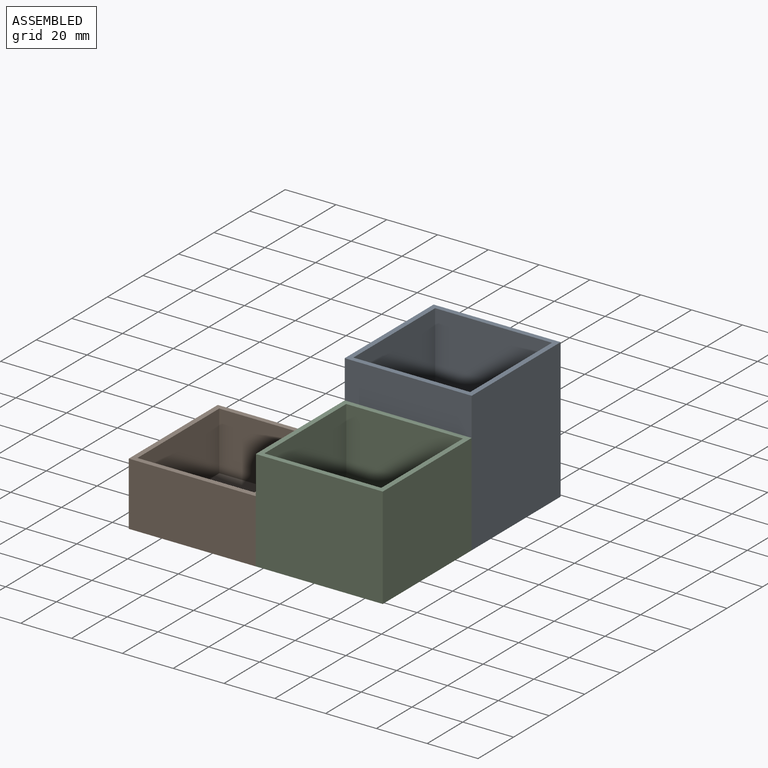
[diagram: assembled view]
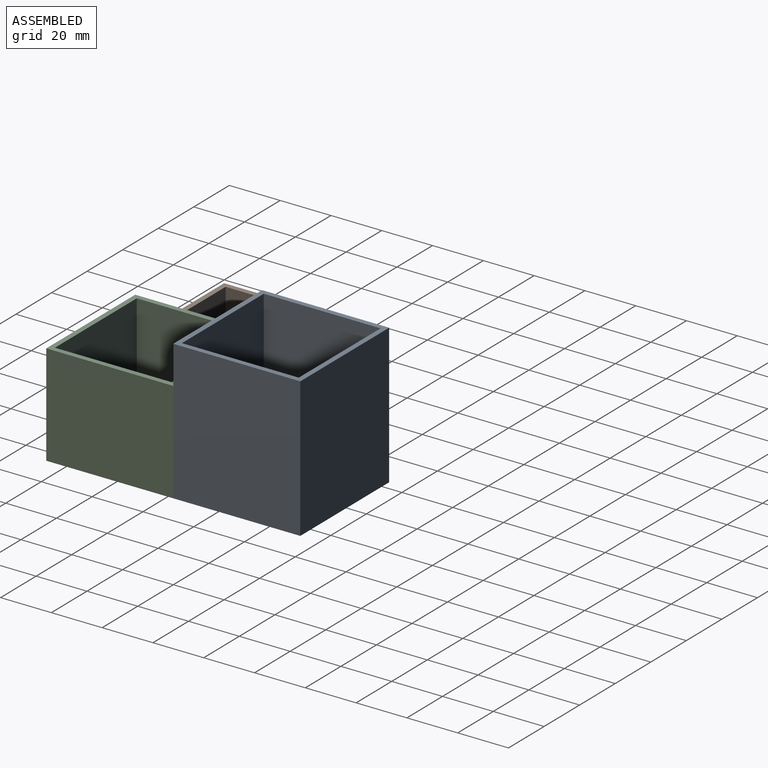
[diagram: assembled view, second angle]
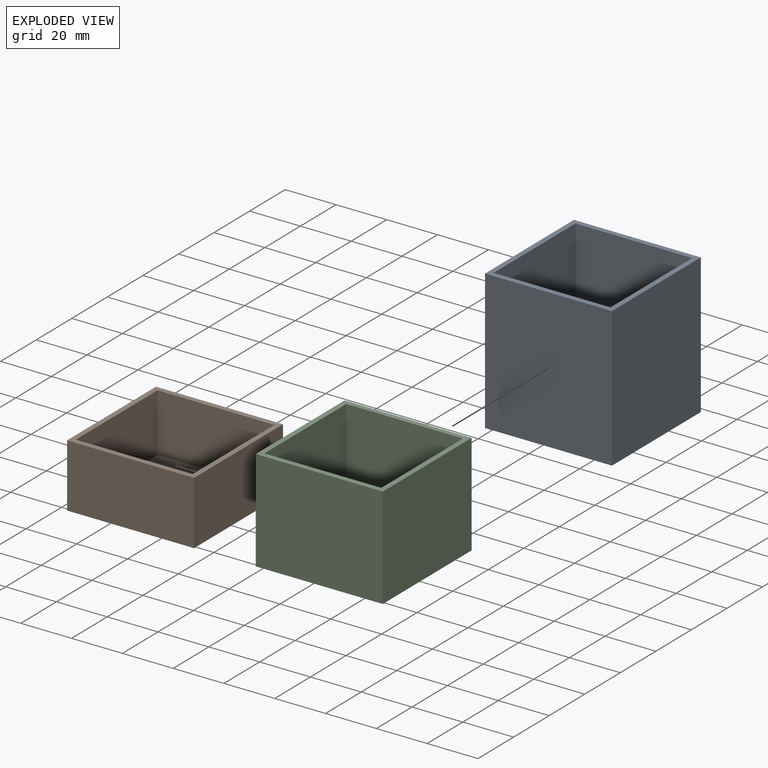
[diagram: exploded view]
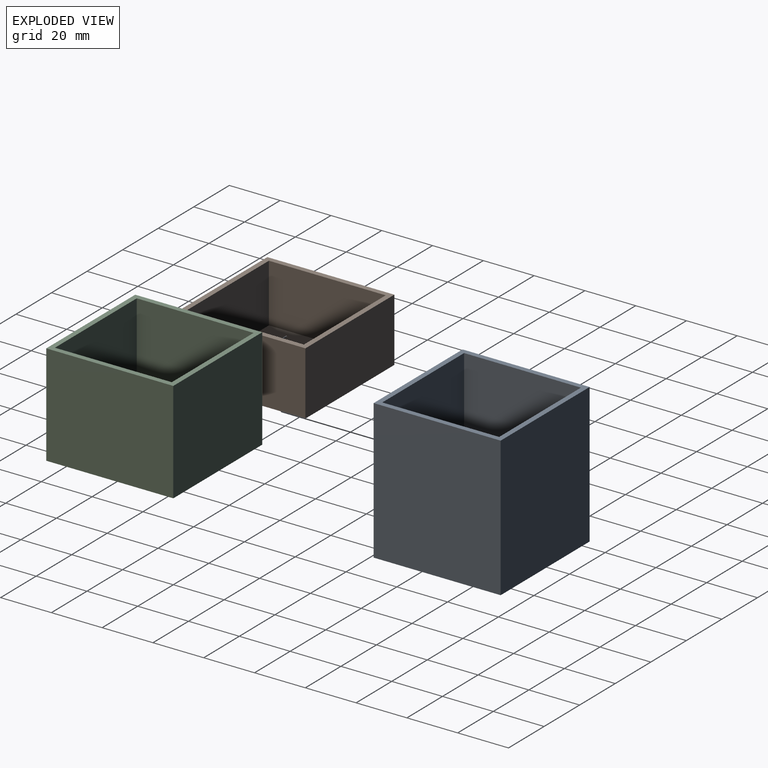
[diagram: exploded view, second angle]
ASSEMBLY  parts=3 mates=2
PART A: 11 faces, bbox 50x50x55 mm
  f0: plane 53x46mm, normal (0,1,0), area 2438mm2, adj f1,f3,f4,f5
  f1: plane 53x46mm, normal (1,0,0), area 2438mm2, adj f0,f2,f4,f5
  f2: plane 53x46mm, normal (0,-1,0), area 2438mm2, adj f1,f3,f4,f5
  f3: plane 53x46mm, normal (-1,0,0), area 2438mm2, adj f0,f2,f4,f5
  f4: plane 46x46mm, normal (0,0,1), area 2116mm2, adj f0,f1,f2,f3
  f5: plane 50x50mm, normal (0,0,1), area 384mm2, adj f0,f1,f2,f3,f7,f8,f9,f10
  f6: plane 50x50mm, normal (0,0,-1), area 2500mm2, adj f7,f8,f9,f10
  f7: plane 55x50mm, normal (-1,0,0), area 2750mm2, adj f5,f6,f8,f10
  f8: plane 55x50mm, normal (0,1,0), area 2750mm2, adj f5,f6,f7,f9
  f9: plane 55x50mm, normal (1,0,0), area 2750mm2, adj f5,f6,f8,f10
  f10: plane 55x50mm, normal (0,-1,0), area 2750mm2, adj f5,f6,f7,f9
PART B: 11 faces, bbox 50x50x25 mm
  f0: plane 50x25mm, normal (0,-1,0), area 1250mm2, adj f1,f3,f4,f9
  f1: plane 50x25mm, normal (1,0,0), area 1250mm2, adj f0,f2,f4,f9
  f2: plane 50x25mm, normal (0,1,0), area 1250mm2, adj f1,f3,f4,f9
  f3: plane 50x25mm, normal (-1,0,0), area 1250mm2, adj f0,f2,f4,f9
  f4: plane 50x50mm, normal (0,0,-1), area 2500mm2, adj f0,f1,f2,f3
  f5: plane 46x23mm, normal (0,1,0), area 1058mm2, adj f6,f8,f9,f10
  f6: plane 46x23mm, normal (1,0,0), area 1058mm2, adj f5,f7,f9,f10
  f7: plane 46x23mm, normal (0,-1,0), area 1058mm2, adj f6,f8,f9,f10
  f8: plane 46x23mm, normal (-1,0,0), area 1058mm2, adj f5,f7,f9,f10
  f9: plane 50x50mm, normal (0,0,1), area 384mm2, adj f0,f1,f2,f3,f5,f6,f7,f8
  f10: plane 46x46mm, normal (0,0,1), area 2116mm2, adj f5,f6,f7,f8
PART C: 11 faces, bbox 50x50x40 mm
  f0: plane 46x38mm, normal (0,1,0), area 1748mm2, adj f1,f3,f4,f5
  f1: plane 46x38mm, normal (1,0,0), area 1748mm2, adj f0,f2,f4,f5
  f2: plane 46x38mm, normal (0,-1,0), area 1748mm2, adj f1,f3,f4,f5
  f3: plane 46x38mm, normal (-1,0,0), area 1748mm2, adj f0,f2,f4,f5
  f4: plane 46x46mm, normal (0,0,1), area 2116mm2, adj f0,f1,f2,f3
  f5: plane 50x50mm, normal (0,0,1), area 384mm2, adj f0,f1,f2,f3,f7,f8,f9,f10
  f6: plane 50x50mm, normal (0,0,-1), area 2500mm2, adj f7,f8,f9,f10
  f7: plane 50x40mm, normal (-1,0,0), area 2000mm2, adj f5,f6,f8,f10
  f8: plane 50x40mm, normal (0,1,0), area 2000mm2, adj f5,f6,f7,f9
  f9: plane 50x40mm, normal (1,0,0), area 2000mm2, adj f5,f6,f8,f10
  f10: plane 50x40mm, normal (0,-1,0), area 2000mm2, adj f5,f6,f7,f9
PLACE A t=(-25,0,0)mm
PLACE B t=(-25,0,0)mm
PLACE C t=(-25,0,0)mm
MATE fastened C.f8 <-> A.f10  axis (0,1,0) through (25,25,0)mm
MATE fastened C.f7 <-> B.f1  axis (-1,0,0) through (0,0,0)mm
